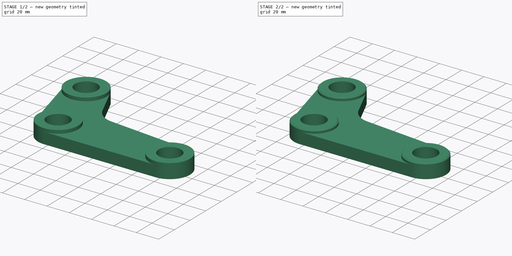
[diagram: build sequence overview — one tinted view per stage of 2, left to right]
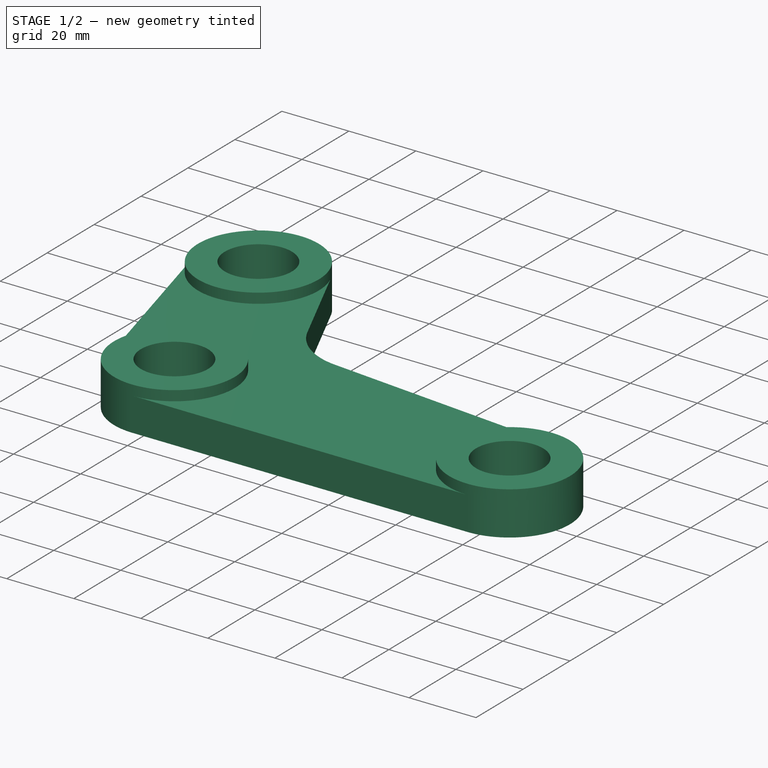
[diagram: stage 1 of 2 — iso view after this stage's code; geometry added in this stage tinted green]
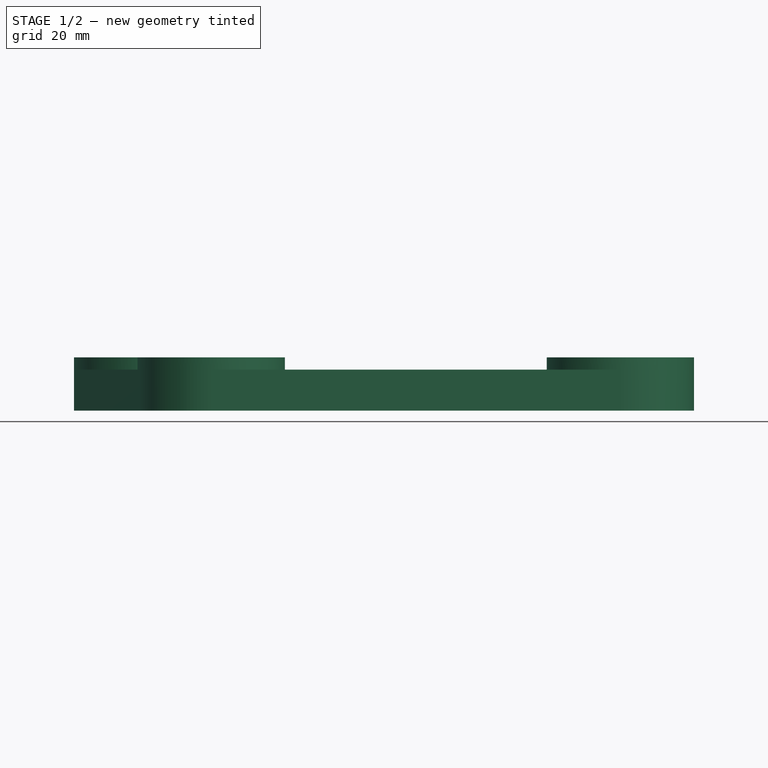
[diagram: stage 1 of 2 — front view after this stage's code; geometry added in this stage tinted green]
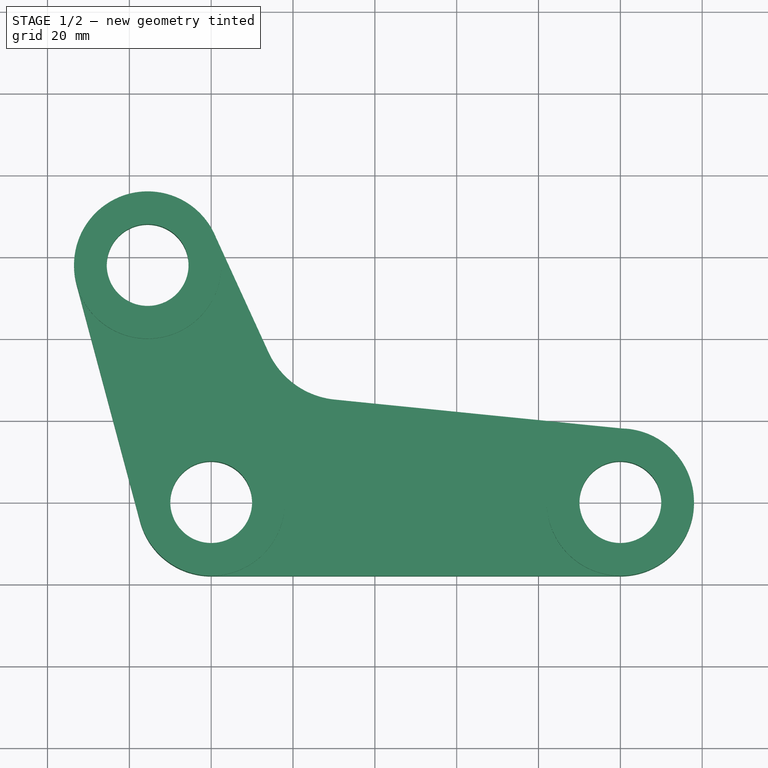
[diagram: stage 1 of 2 — top view after this stage's code; geometry added in this stage tinted green]
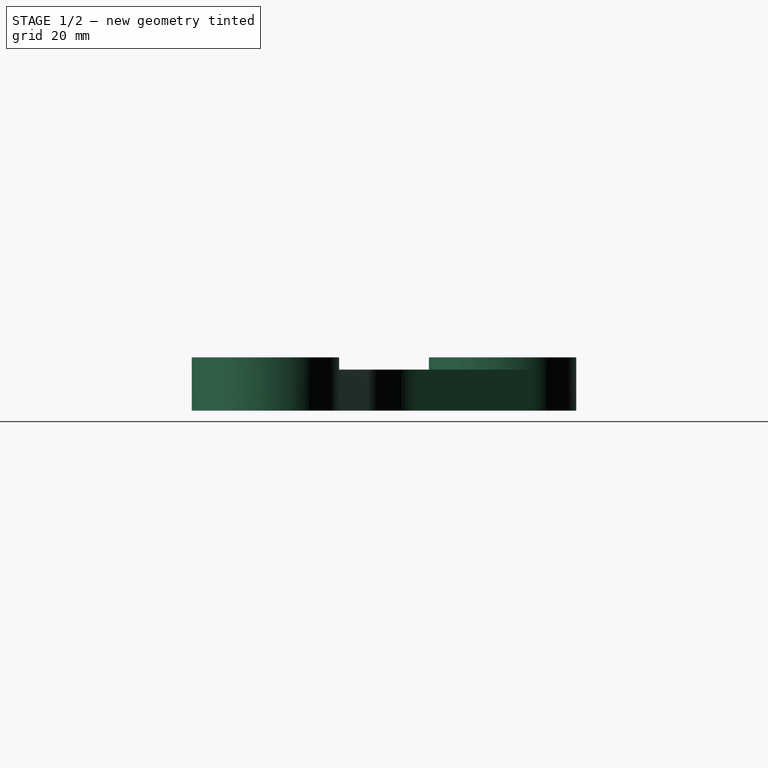
[diagram: stage 1 of 2 — right view after this stage's code; geometry added in this stage tinted green]
FCSTD DOCUMENT  (FreeCAD 0.20R29177 +426 (Git))
Label: soporte
License: All rights reserved
LicenseURL: http://en.wikipedia.org/wiki/All_rights_reserved
objects: Sketcher::SketchObject×3, PartDesign::Pad×2, PartDesign::Chamfer×1, PartDesign::Body×1
note: 10 computed .brp shape members not serialized (recipe doc carries the construction recipe); baked Part::Feature solids carry a one-line shape summary decoded from their .brp

FEATURE [Sketcher::SketchObject] Sketch
  FullyConstrained = true
  MapMode = 5
  Support = -> [XY_Plane]
  sketch-geometry (15):
    g0: LineSegment StartX=0 StartY=0 StartZ=0 EndX=-15.5291 EndY=57.9555 EndZ=0
    g1: Circle CenterX=0 CenterY=0 CenterZ=0 NormalX=0 NormalY=0 NormalZ=1 AngleXU=0 Radius=10
    g2: ArcOfCircle CenterX=0 CenterY=0 CenterZ=0 NormalX=0 NormalY=0 NormalZ=1 AngleXU=0 Radius=18 StartAngle=3.40339 EndAngle=4.71239
    g3: Circle CenterX=-15.5291 CenterY=57.9555 CenterZ=0 NormalX=0 NormalY=0 NormalZ=1 AngleXU=0 Radius=10
    g4: ArcOfCircle CenterX=-15.5291 CenterY=57.9555 CenterZ=0 NormalX=0 NormalY=0 NormalZ=1 AngleXU=0 Radius=18 StartAngle=0.429247 EndAngle=3.40339
    g5: Circle CenterX=100 CenterY=0 CenterZ=0 NormalX=0 NormalY=0 NormalZ=1 AngleXU=0 Radius=10
    g6: ArcOfCircle CenterX=100 CenterY=0 CenterZ=0 NormalX=0 NormalY=0 NormalZ=1 AngleXU=0 Radius=18 StartAngle=4.71239 EndAngle=7.75381
    g7: Circle CenterX=0 CenterY=0 CenterZ=0 NormalX=0 NormalY=0 NormalZ=1 AngleXU=0 Radius=28
    g8: LineSegment StartX=0.837883 StartY=65.4469 StartZ=0 EndX=25.4598 EndY=11.6532 EndZ=0
    g9: LineSegment StartX=101.8 StartY=17.9098 StartZ=0 EndX=2.8 EndY=27.8596 EndZ=0
    g10: LineSegment StartX=1.27e-14 StartY=-18 StartZ=0 EndX=100 EndY=-18 EndZ=0
    g11: LineSegment StartX=-32.9158 StartY=53.2968 StartZ=0 EndX=-17.3867 EndY=-4.65874 EndZ=0
    g12: LineSegment StartX=0.837883 StartY=65.4469 StartZ=0 EndX=14.0034 EndY=36.683 EndZ=0
    g13: LineSegment StartX=30.189 StartY=25.1069 StartZ=0 EndX=101.8 EndY=17.9098 EndZ=0
    g14: ArcOfCircle CenterX=32.189 CenterY=45.0067 CenterZ=0 NormalX=0 NormalY=0 NormalZ=1 AngleXU=0 Radius=20 StartAngle=3.57084 EndAngle=4.61222
  constraints (33):
    c: Coincident(g0,g-1)
    c: Angle(g-1,g0) = 1.8326
    c: Distance(g0) = 60
    c: Coincident(g1,g0)
    c: Coincident(g2,g1)
    c: Coincident(g3,g0)
    c: Coincident(g4,g3)
    c: PointOnObject(g5,g-1)
    c: Coincident(g6,g5)
    c: Coincident(g7,g1)
    c: Radius(g7) = 28
    c: Radius(g6) = 18
    c: Radius(g2) = 18
    c: Radius(g4) = 18
    c: DistanceX(g1,g5) = 100
    c: Radius(g5) = 10
    c: Radius(g1) = 10
    c: Radius(g3) = 10
    c: Tangent(g9,g7) = -1.5708
    c: Tangent(g8,g7) = 1.5708
    c: Coincident(g13,g9)
    c: Coincident(g12,g8)
    c: Tangent(g12,g14) = -1.5708
    c: Tangent(g13,g14) = -1.5708
    c: Radius(g14) = 20
    c: PointOnObject(g13,g9)
    c: PointOnObject(g12,g8)
    c: Tangent(g4,g8) = 1.5708
    c: Tangent(g4,g11) = -1.5708
    c: Tangent(g2,g11) = -1.5708
    c: Tangent(g2,g10) = -1.5708
    c: Tangent(g6,g9) = -1.5708
    c: Tangent(g6,g10) = -1.5708
FEATURE [PartDesign::Pad] Pad
  Direction = (0,0,1)
  Length = 10
  Length2 = 10
  Profile = -> Sketch
  ReferenceAxis = -> Sketch [N_Axis]
  Type = 0
FEATURE [Sketcher::SketchObject] Sketch001
  FullyConstrained = true
  MapMode = 5
  Placement = pos=(0,0,0) rot=(1,0,0;1.5708rad)
  Support = -> [XZ_Plane]
FEATURE [Sketcher::SketchObject] Sketch002
  ExternalGeometry = -> [Pad]
  FullyConstrained = true
  MapMode = 5
  Placement = pos=(0,0,10) rot=(0,0,1;0rad)
  Support = -> [Pad]
  sketch-geometry (6):
    g0: Circle CenterX=-15.5291 CenterY=57.9555 CenterZ=0 NormalX=0 NormalY=0 NormalZ=1 AngleXU=0 Radius=10
    g1: Circle CenterX=0 CenterY=0 CenterZ=0 NormalX=0 NormalY=0 NormalZ=1 AngleXU=0 Radius=10
    g2: Circle CenterX=100 CenterY=0 CenterZ=0 NormalX=0 NormalY=0 NormalZ=1 AngleXU=0 Radius=10
    g3: Circle CenterX=-15.5291 CenterY=57.9555 CenterZ=0 NormalX=0 NormalY=0 NormalZ=1 AngleXU=0 Radius=18
    g4: Circle CenterX=0 CenterY=0 CenterZ=0 NormalX=0 NormalY=0 NormalZ=1 AngleXU=0 Radius=18
    g5: Circle CenterX=100 CenterY=0 CenterZ=0 NormalX=0 NormalY=0 NormalZ=1 AngleXU=0 Radius=18
  constraints (12):
    c: Equal(g2,g1)
    c: Equal(g1,g0)
    c: Radius(g2) = 10
    c: Coincident(g0,g-3)
    c: Coincident(g2,g-5)
    c: Coincident(g1,g-4)
    c: Coincident(g3,g0)
    c: Coincident(g4,g1)
    c: Coincident(g5,g2)
    c: Radius(g5) = 18
    c: Radius(g4) = 18
    c: Radius(g3) = 18
FEATURE [PartDesign::Pad] Pad001
  BaseFeature = -> Pad
  Direction = (0,0,1)
  Length = 3
  Length2 = 10
  Profile = -> Sketch002
  ReferenceAxis = -> Sketch002 [N_Axis]
  Type = 0
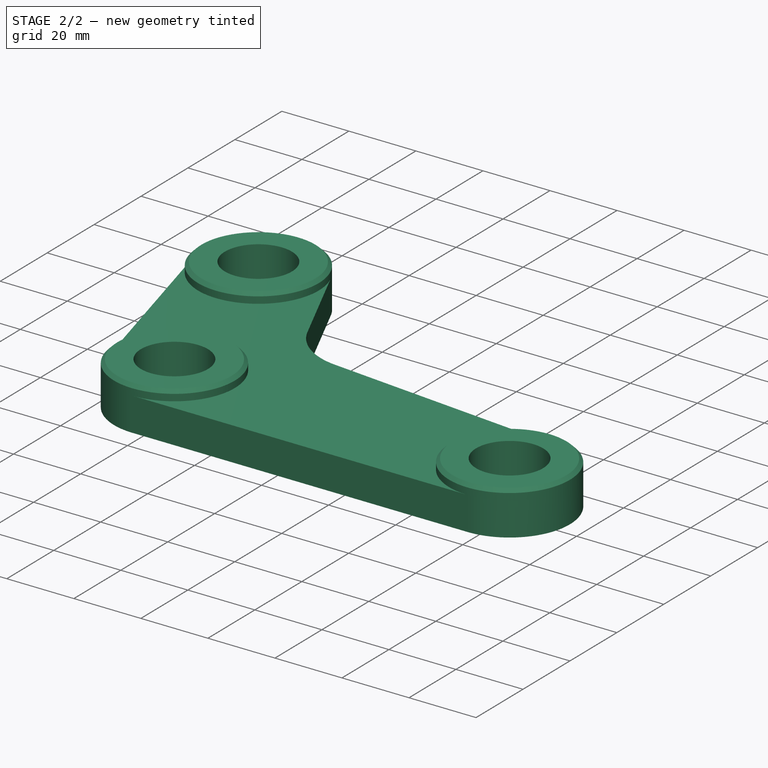
[diagram: stage 2 of 2 — iso view after this stage's code; geometry added in this stage tinted green]
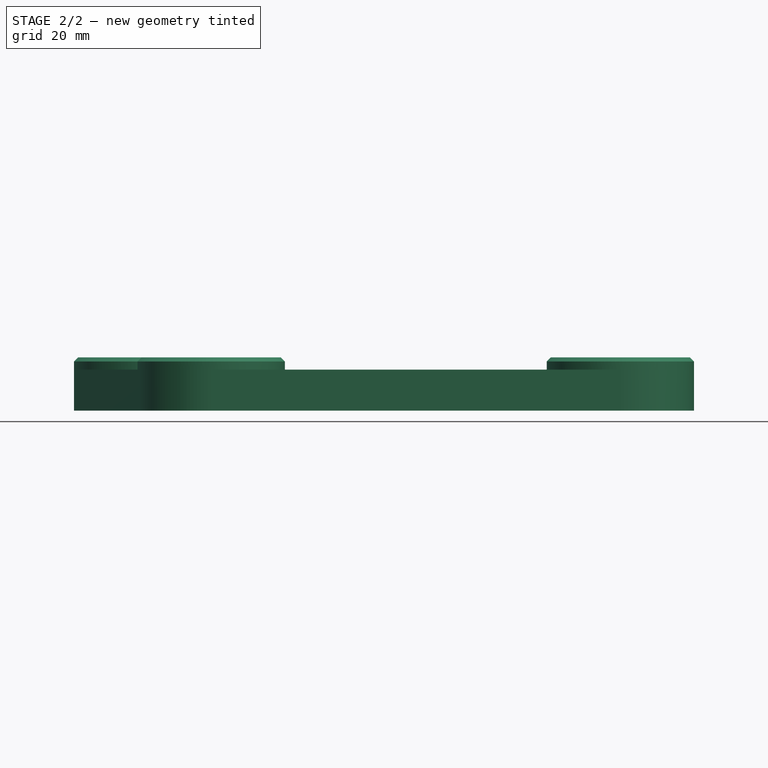
[diagram: stage 2 of 2 — front view after this stage's code; geometry added in this stage tinted green]
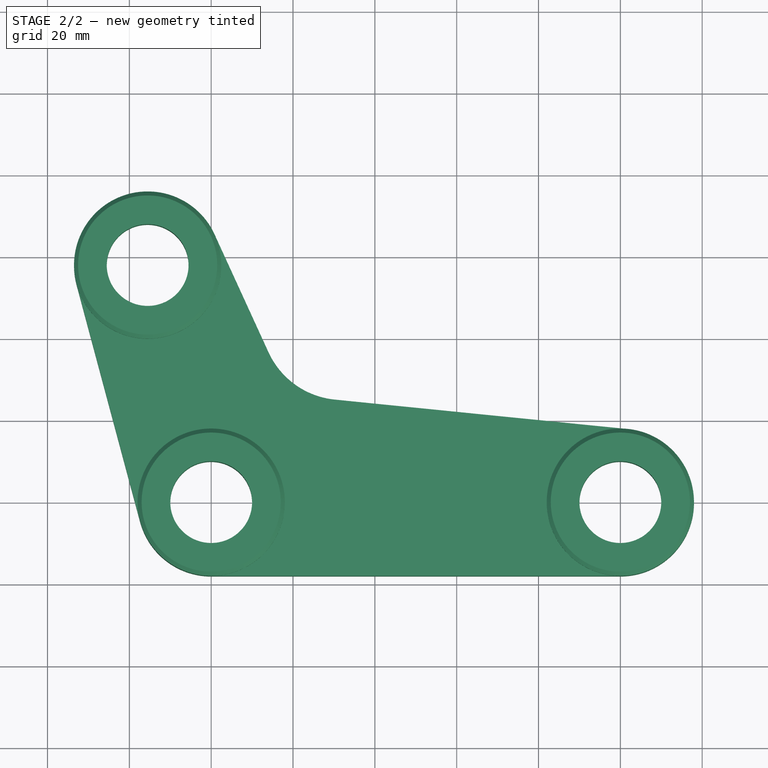
[diagram: stage 2 of 2 — top view after this stage's code; geometry added in this stage tinted green]
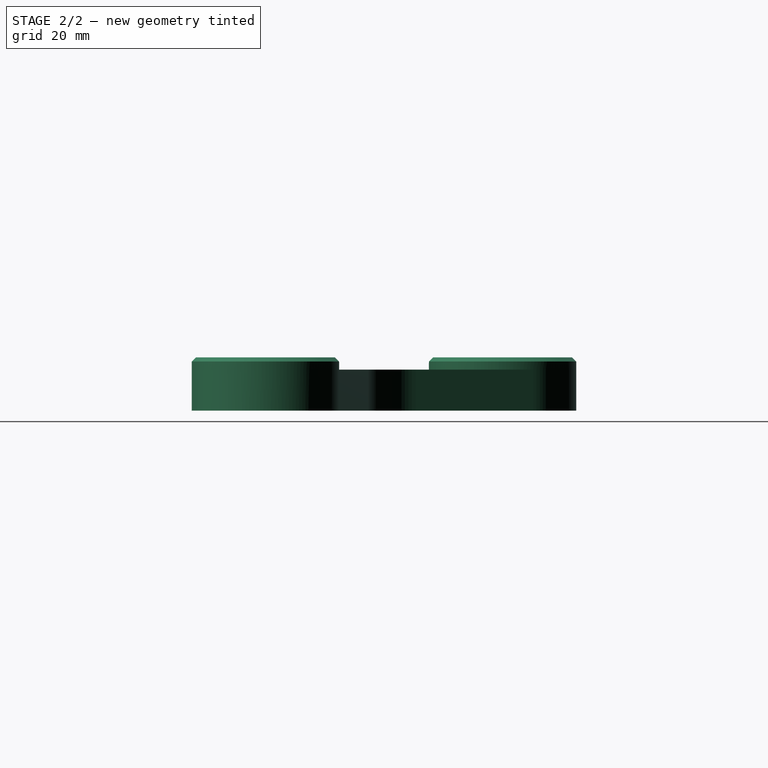
[diagram: stage 2 of 2 — right view after this stage's code; geometry added in this stage tinted green]
FEATURE [PartDesign::Chamfer] Chamfer
  Angle = 45
  Base = -> Pad001 [Edge46,Edge22,Edge44]
  BaseFeature = -> Pad001
  ChamferType = 0
  FlipDirection = false
  Size = 1
  Size2 = 1
  SupportTransform = false
  UseAllEdges = false
FEATURE [PartDesign::Body] Body
  Group = -> [Sketch,Pad,Sketch001,Sketch002,Pad001,Chamfer]
  Origin = -> Origin
  Tip = -> Chamfer
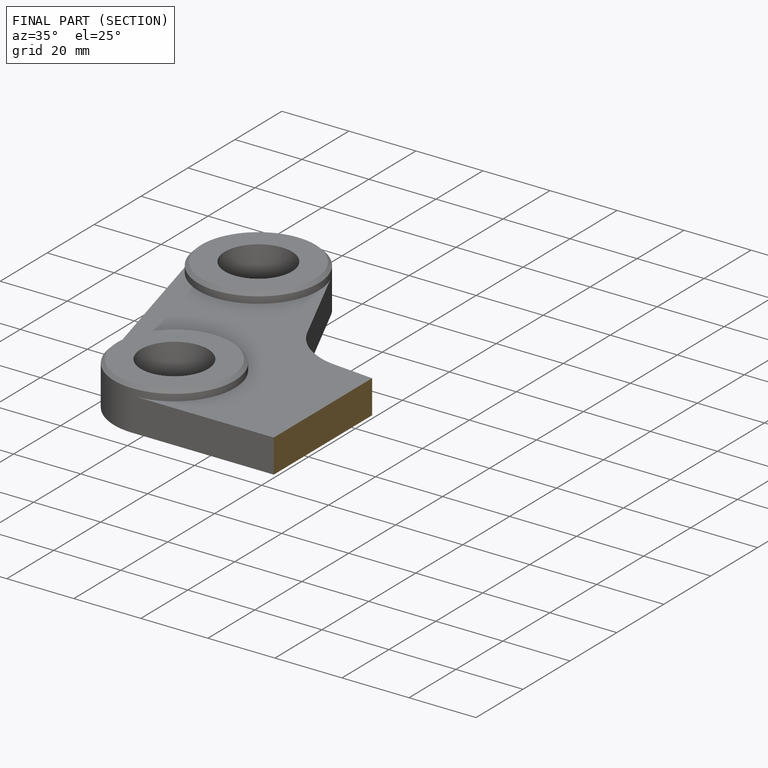
[diagram: finished part — half-section view (interior)]
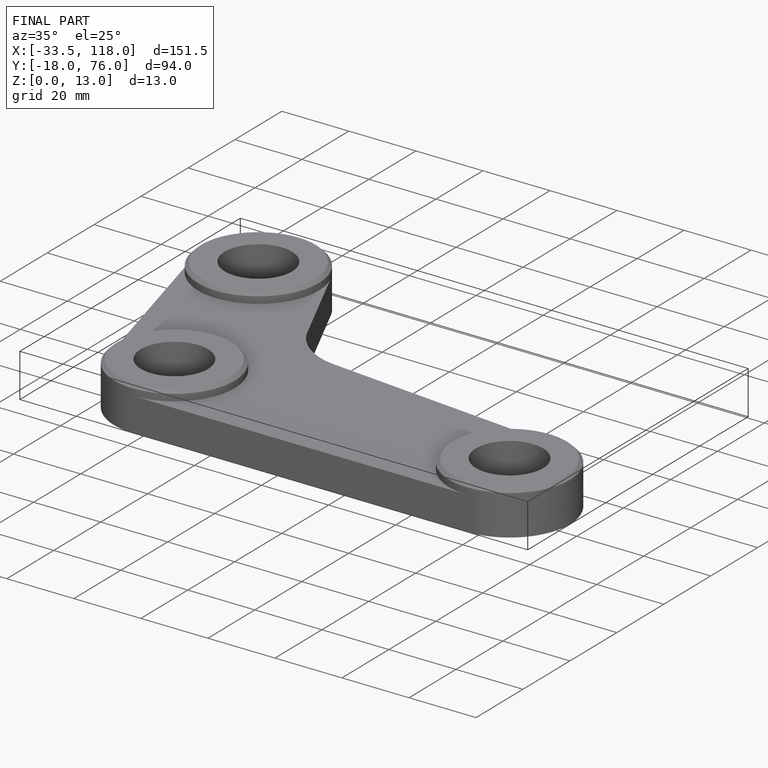
[diagram: finished part — iso view with bounding-box wireframe]
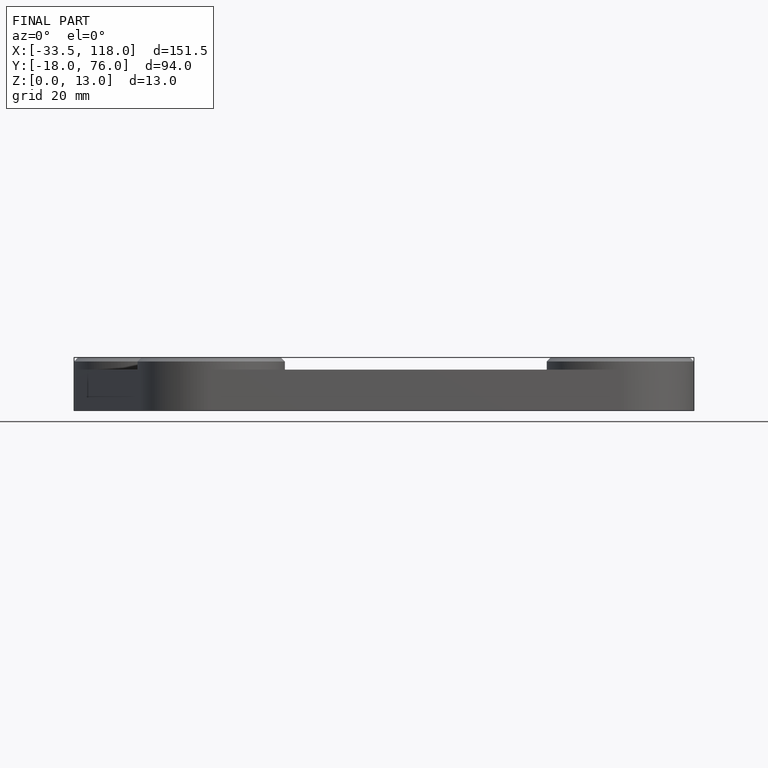
[diagram: finished part — front view with bounding-box wireframe]
